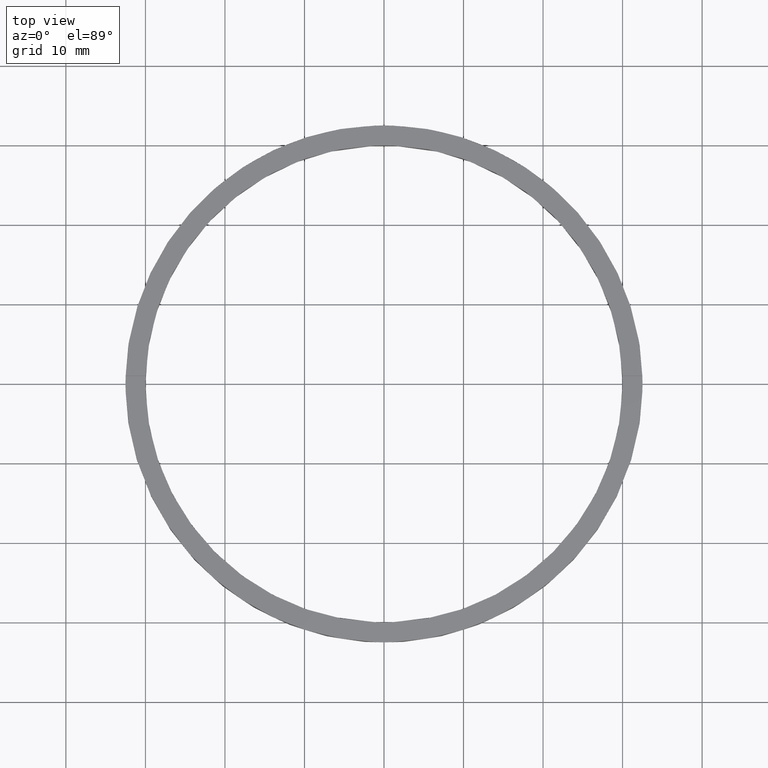
[diagram: clean part render]
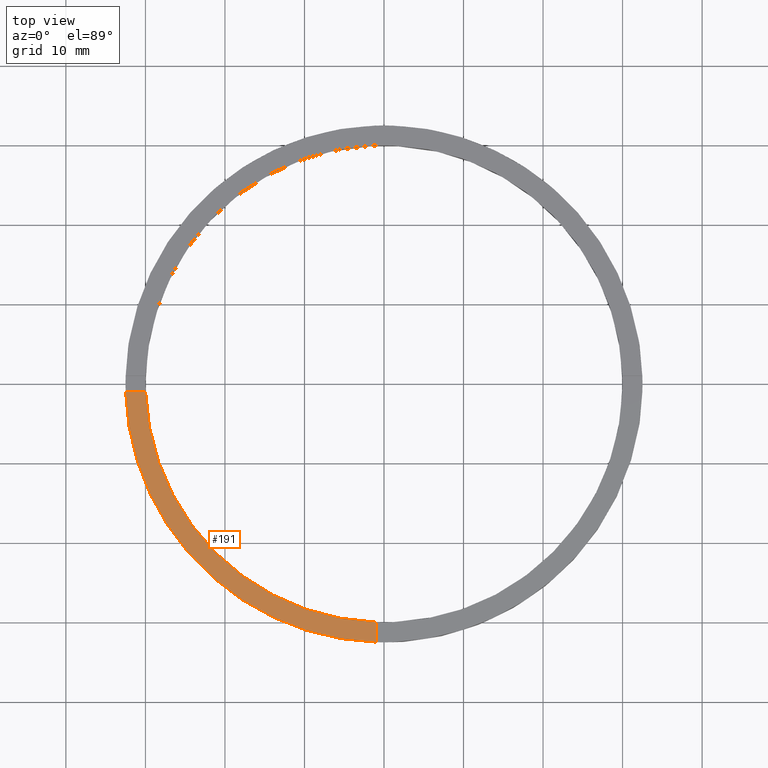
[diagram: same view with one face highlighted and labeled with its STEP entity id]
A machine part, top view. The second image highlights one B-rep face of the part: STEP entity #191.
In plain terms, the highlighted planar face has unit normal (0, 0, 1).
Its self-contained STEP definition (entity closure, byte-faithful):
#6 = LINE ( 'NONE', #214, #8 ) ;
#8 = VECTOR ( 'NONE', #768, 1000.000000000000000 ) ;
#31 = VERTEX_POINT ( 'NONE', #434 ) ;
#54 = ORIENTED_EDGE ( 'NONE', *, *, #487, .T. ) ;
#58 = CARTESIAN_POINT ( 'NONE',  ( 0.000000000000000000, 0.000000000000000000, 3.000000000000000000 ) ) ;
#66 = DIRECTION ( 'NONE',  ( 1.000000000000000000, 0.000000000000000000, 0.000000000000000000 ) ) ;
#85 = DIRECTION ( 'NONE',  ( 1.000000000000000000, 0.000000000000000000, 0.000000000000000000 ) ) ;
#135 = VERTEX_POINT ( 'NONE', #167 ) ;
#146 = DIRECTION ( 'NONE',  ( 0.000000000000000000, 0.000000000000000000, 1.000000000000000000 ) ) ;
#148 = DIRECTION ( 'NONE',  ( 0.000000000000000000, 0.000000000000000000, 1.000000000000000000 ) ) ;
#163 = AXIS2_PLACEMENT_3D ( 'NONE', #591, #546, #66 ) ;
#167 = CARTESIAN_POINT ( 'NONE',  ( -29.98332870112989568, -1.000000000000025535, 3.000000000000000000 ) ) ;
#184 = EDGE_CURVE ( 'NONE', #752, #455, #537, .T. ) ;
#191 = ADVANCED_FACE ( 'NONE', ( #524 ), #701, .T. ) ;
#192 = EDGE_CURVE ( 'NONE', #31, #135, #6, .T. ) ;
#194 = ORIENTED_EDGE ( 'NONE', *, *, #192, .F. ) ;
#206 = DIRECTION ( 'NONE',  ( 1.000000000000000000, 0.000000000000000000, -0.000000000000000000 ) ) ;
#214 = CARTESIAN_POINT ( 'NONE',  ( -22.50000000000018474, -1.000000000000023981, 3.000000000000000000 ) ) ;
#228 = ORIENTED_EDGE ( 'NONE', *, *, #438, .F. ) ;
#258 = VECTOR ( 'NONE', #743, 1000.000000000000000 ) ;
#286 = EDGE_LOOP ( 'NONE', ( #754, #228, #194, #54 ) ) ;
#349 = CIRCLE ( 'NONE', #773, 32.50000000000000000 ) ;
#419 = CARTESIAN_POINT ( 'NONE',  ( -1.000000000000161426, -32.48461174156157227, 3.000000000000000000 ) ) ;
#434 = CARTESIAN_POINT ( 'NONE',  ( -32.48461174156157227, -1.000000000000025979, 3.000000000000000000 ) ) ;
#438 = EDGE_CURVE ( 'NONE', #135, #752, #611, .T. ) ;
#455 = VERTEX_POINT ( 'NONE', #419 ) ;
#487 = EDGE_CURVE ( 'NONE', #31, #455, #349, .T. ) ;
#524 = FACE_OUTER_BOUND ( 'NONE', #286, .T. ) ;
#537 = LINE ( 'NONE', #602, #258 ) ;
#546 = DIRECTION ( 'NONE',  ( 0.000000000000000000, 0.000000000000000000, 1.000000000000000000 ) ) ;
#591 = CARTESIAN_POINT ( 'NONE',  ( 0.000000000000000000, 0.000000000000000000, 3.000000000000000000 ) ) ;
#602 = CARTESIAN_POINT ( 'NONE',  ( -1.000000000000162537, -22.50000000000018119, 3.000000000000000000 ) ) ;
#611 = CIRCLE ( 'NONE', #163, 30.00000000000000000 ) ;
#623 = CARTESIAN_POINT ( 'NONE',  ( 0.000000000000000000, 0.000000000000000000, 3.000000000000000000 ) ) ;
#701 = PLANE ( 'NONE',  #751 ) ;
#743 = DIRECTION ( 'NONE',  ( 1.301042606982605074E-16, -1.000000000000000000, 0.000000000000000000 ) ) ;
#751 = AXIS2_PLACEMENT_3D ( 'NONE', #58, #148, #206 ) ;
#752 = VERTEX_POINT ( 'NONE', #764 ) ;
#754 = ORIENTED_EDGE ( 'NONE', *, *, #184, .F. ) ;
#764 = CARTESIAN_POINT ( 'NONE',  ( -1.000000000000161648, -29.98332870112989212, 3.000000000000000000 ) ) ;
#768 = DIRECTION ( 'NONE',  ( 1.000000000000000000, 1.951563910473908228E-16, -0.000000000000000000 ) ) ;
#773 = AXIS2_PLACEMENT_3D ( 'NONE', #623, #146, #85 ) ;